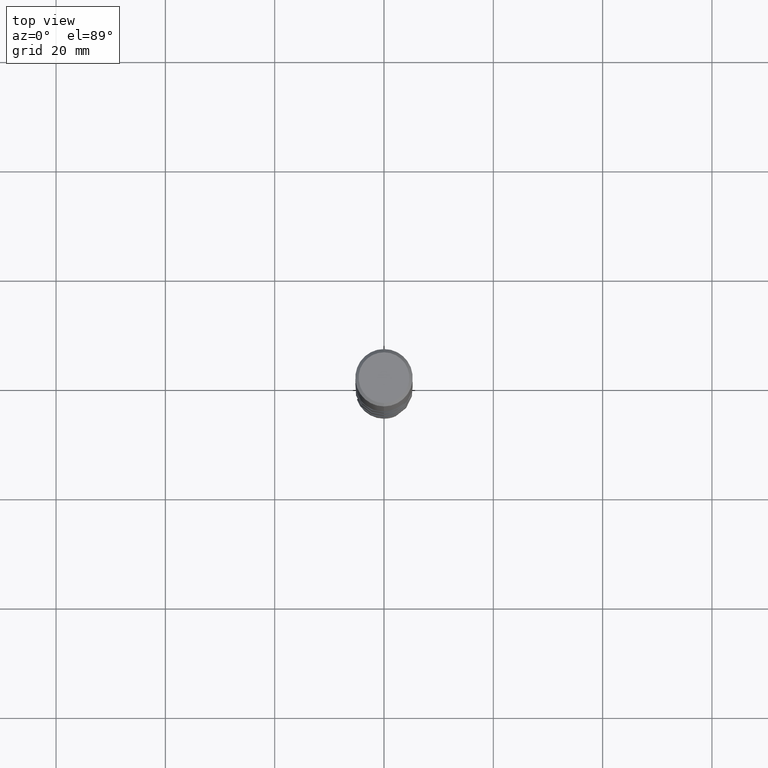
[diagram: clean part render]
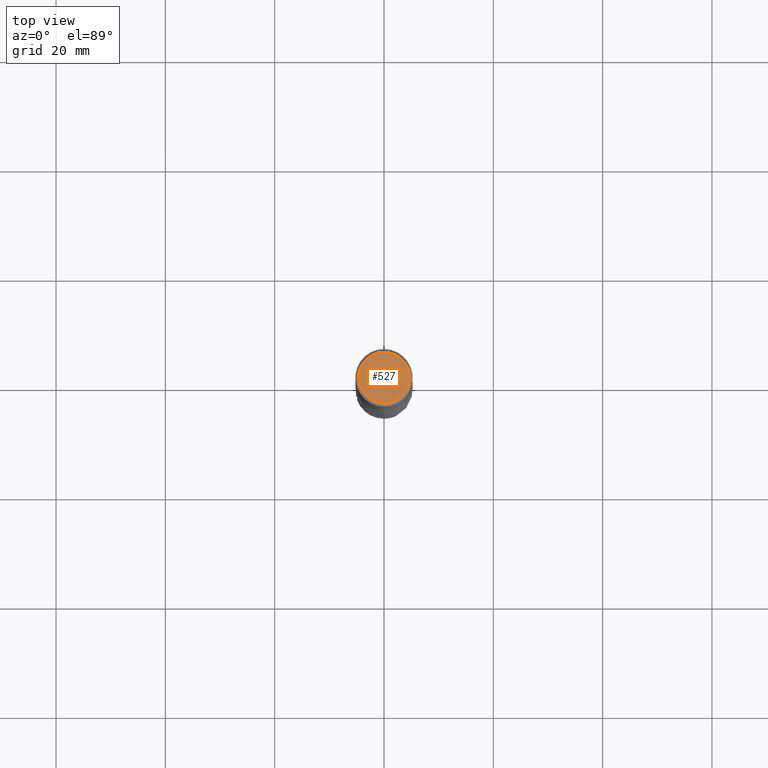
[diagram: same view with one face highlighted and labeled with its STEP entity id]
A machine part, top view. The second image highlights one B-rep face of the part: STEP entity #527.
In plain terms, the highlighted planar face has unit normal (-0, 0, 1).
Its self-contained STEP definition (entity closure, byte-faithful):
#359=EDGE_CURVE('',#581,#559,#844,.T.);
#527=ADVANCED_FACE('',(#1024),#1025,.T.);
#559=VERTEX_POINT('',#1059);
#581=VERTEX_POINT('',#1084);
#691=EDGE_CURVE('',#559,#581,#1204,.T.);
#844=CIRCLE('',#3247,4.65);
#1024=FACE_OUTER_BOUND('',#4438,.T.);
#1025=PLANE('',#4439);
#1059=CARTESIAN_POINT('',(0.0,4.65,0.0));
#1084=CARTESIAN_POINT('',(5.69441954527405E-016,-4.65,0.0));
#1204=CIRCLE('',#5668,4.65);
#3247=AXIS2_PLACEMENT_3D('',#6948,#6949,#6950);
#4438=EDGE_LOOP('',(#7096,#7097));
#4439=AXIS2_PLACEMENT_3D('',#7098,#7099,#7100);
#5668=AXIS2_PLACEMENT_3D('',#7314,#7315,#7316);
#6948=CARTESIAN_POINT('',(0.0,0.0,0.0));
#6949=DIRECTION('',(0.0,0.0,-1.0));
#6950=DIRECTION('',(0.0,1.0,0.0));
#7096=ORIENTED_EDGE('',*,*,#691,.F.);
#7097=ORIENTED_EDGE('',*,*,#359,.F.);
#7098=CARTESIAN_POINT('',(0.0,2.325,0.0));
#7099=DIRECTION('',(-0.0,0.0,1.0));
#7100=DIRECTION('',(0.0,-1.0,0.0));
#7314=CARTESIAN_POINT('',(0.0,0.0,0.0));
#7315=DIRECTION('',(0.0,0.0,-1.0));
#7316=DIRECTION('',(0.0,1.0,0.0));